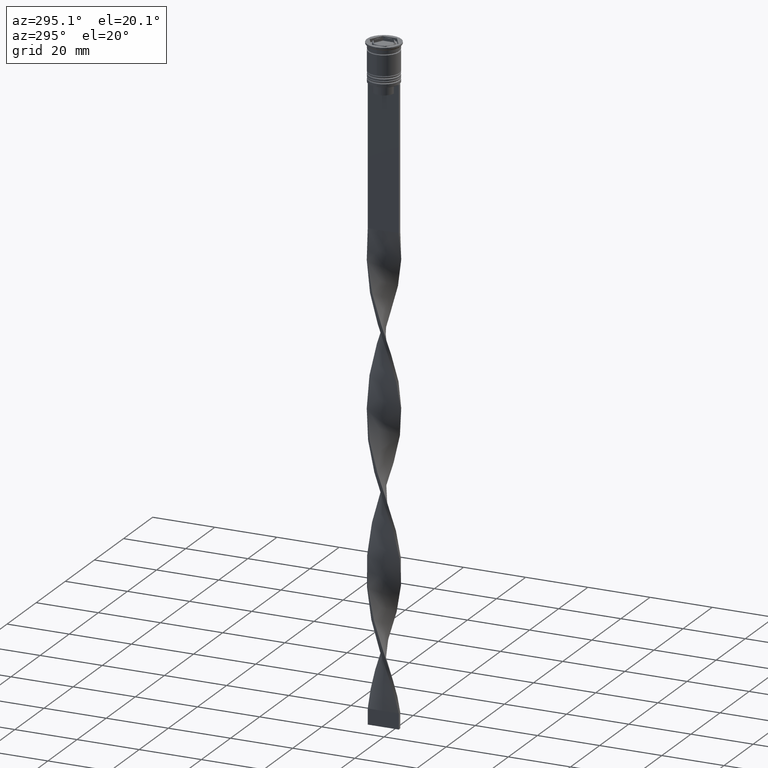
[diagram: clean part render]
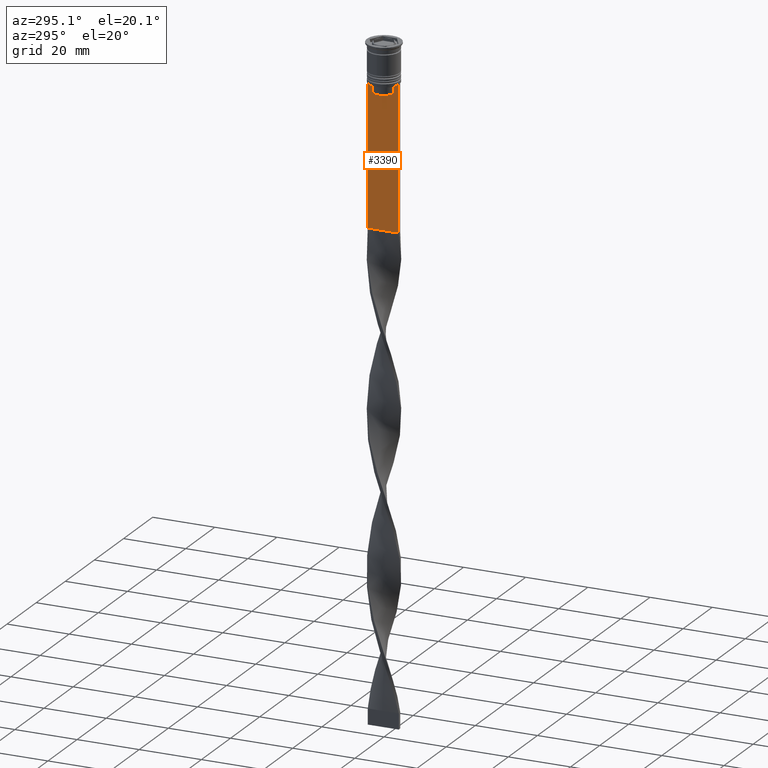
[diagram: same view with one face highlighted and labeled with its STEP entity id]
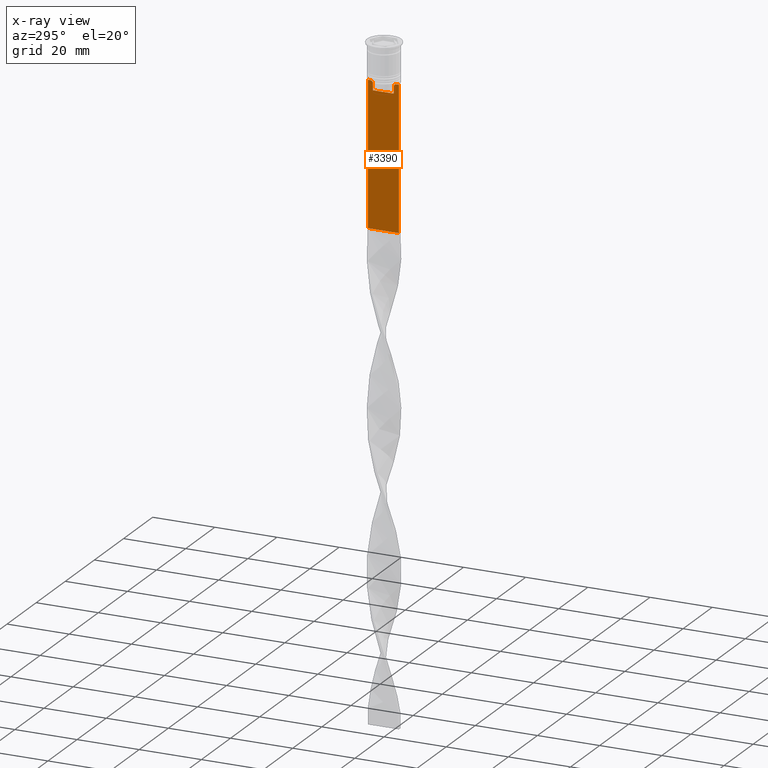
[diagram: x-ray of the same camera — body ghosted, the highlighted face saturated]
A machine part, auxiliary view. The second image highlights one B-rep face of the part: STEP entity #3390.
The next image is the same camera in x-ray: the body ghosted, the highlighted face saturated — about 0% of this face is hidden behind the body in this view.
In plain terms, the highlighted planar face has unit normal (-1, 0, 0).
Its self-contained STEP definition (entity closure, byte-faithful):
#94 = B_SPLINE_CURVE_WITH_KNOTS ( 'NONE', 3,
 ( #220, #3024, #2362, #3591 ),
 .UNSPECIFIED., .F., .F.,
 ( 4, 4 ),
 ( 0.006644825462451552783, 0.007355321358912435097 ),
 .UNSPECIFIED. ) ;
#169 = ORIENTED_EDGE ( 'NONE', *, *, #2164, .T. ) ;
#180 = CARTESIAN_POINT ( 'NONE',  ( -0.5000000000000000000, -3.363034344160045652, -15.50000000000000000 ) ) ;
#185 = VECTOR ( 'NONE', #3327, 1000.000000000000000 ) ;
#192 = AXIS2_PLACEMENT_3D ( 'NONE', #450, #1364, #3159 ) ;
#204 = VERTEX_POINT ( 'NONE', #722 ) ;
#220 = CARTESIAN_POINT ( 'NONE',  ( -0.5000000000000000000, 3.867815921162742754, -12.50000000000000000 ) ) ;
#251 = CARTESIAN_POINT ( 'NONE',  ( -0.5000000000000000000, -3.867815921162742754, -12.50000000000000000 ) ) ;
#289 = CARTESIAN_POINT ( 'NONE',  ( -0.5000000000000000000, 4.874423042781575788, -12.50000000000000000 ) ) ;
#377 = VECTOR ( 'NONE', #2246, 1000.000000000000000 ) ;
#413 = CARTESIAN_POINT ( 'NONE',  ( -0.5000000000000000000, -4.999999999999999112, -12.50000000000000000 ) ) ;
#443 = DIRECTION ( 'NONE',  ( 0.000000000000000000, -1.000000000000000000, 0.000000000000000000 ) ) ;
#450 = CARTESIAN_POINT ( 'NONE',  ( -0.5000000000000000000, -4.999999999999999112, -2.450124378879110054 ) ) ;
#509 = VECTOR ( 'NONE', #1249, 1000.000000000000000 ) ;
#594 = VERTEX_POINT ( 'NONE', #3644 ) ;
#674 = CARTESIAN_POINT ( 'NONE',  ( -0.5000000000000000000, -4.999999999999999112, -12.50000000000000000 ) ) ;
#717 = VERTEX_POINT ( 'NONE', #413 ) ;
#722 = CARTESIAN_POINT ( 'NONE',  ( -0.5000000000000000000, 5.000000000000000888, -12.50000000000000000 ) ) ;
#751 = ORIENTED_EDGE ( 'NONE', *, *, #2069, .F. ) ;
#840 = EDGE_CURVE ( 'NONE', #3834, #2535, #2388, .T. ) ;
#864 = CARTESIAN_POINT ( 'NONE',  ( -0.5000000000000000000, -4.999999999999999112, -12.50000000000000000 ) ) ;
#937 = CARTESIAN_POINT ( 'NONE',  ( -0.5000000000000000000, -3.363034344160045208, 0.000000000000000000 ) ) ;
#966 = ORIENTED_EDGE ( 'NONE', *, *, #1471, .F. ) ;
#1019 = B_SPLINE_CURVE_WITH_KNOTS ( 'NONE', 3,
 ( #3089, #1820, #1507, #251 ),
 .UNSPECIFIED., .F., .F.,
 ( 4, 4 ),
 ( 0.01632394437298965648, 0.01703543518243618576 ),
 .UNSPECIFIED. ) ;
#1042 = CARTESIAN_POINT ( 'NONE',  ( -0.5000000000000000000, -4.999999999999999112, -58.50000000000000000 ) ) ;
#1068 = VERTEX_POINT ( 'NONE', #1190 ) ;
#1093 = CARTESIAN_POINT ( 'NONE',  ( -0.5000000000000000000, 3.363034344160045652, -15.50000000000000000 ) ) ;
#1096 = CARTESIAN_POINT ( 'NONE',  ( -0.5000000000000000000, 3.363034344160045208, -13.00000000000000178 ) ) ;
#1110 = EDGE_CURVE ( 'NONE', #717, #1870, #3655, .T. ) ;
#1158 = EDGE_CURVE ( 'NONE', #1870, #3453, #2835, .T. ) ;
#1159 = EDGE_CURVE ( 'NONE', #3226, #717, #3155, .T. ) ;
#1190 = CARTESIAN_POINT ( 'NONE',  ( -0.5000000000000000000, -3.867815921162742754, -12.50000000000000000 ) ) ;
#1249 = DIRECTION ( 'NONE',  ( 0.000000000000000000, 0.000000000000000000, -1.000000000000000000 ) ) ;
#1289 = VECTOR ( 'NONE', #1892, 1000.000000000000000 ) ;
#1364 = DIRECTION ( 'NONE',  ( -1.000000000000000000, 0.000000000000000000, 0.000000000000000000 ) ) ;
#1366 = ORIENTED_EDGE ( 'NONE', *, *, #1158, .F. ) ;
#1471 = EDGE_CURVE ( 'NONE', #3656, #1629, #1826, .T. ) ;
#1507 = CARTESIAN_POINT ( 'NONE',  ( -0.5000000000000000000, -3.699658232838647365, -12.66676999593996555 ) ) ;
#1612 = VECTOR ( 'NONE', #2105, 1000.000000000000000 ) ;
#1625 = CARTESIAN_POINT ( 'NONE',  ( -0.5000000000000000000, -4.999999999999999112, -12.50000000000000000 ) ) ;
#1629 = VERTEX_POINT ( 'NONE', #2993 ) ;
#1683 = VECTOR ( 'NONE', #443, 1000.000000000000000 ) ;
#1793 = CARTESIAN_POINT ( 'NONE',  ( -0.5000000000000000000, -4.999999999999999112, -2.450124378879110054 ) ) ;
#1815 = VECTOR ( 'NONE', #3104, 1000.000000000000000 ) ;
#1820 = CARTESIAN_POINT ( 'NONE',  ( -0.5000000000000000000, -3.531412985305424801, -12.83345201382502765 ) ) ;
#1826 = LINE ( 'NONE', #937, #1289 ) ;
#1833 = EDGE_CURVE ( 'NONE', #204, #3245, #3433, .T. ) ;
#1870 = VERTEX_POINT ( 'NONE', #1042 ) ;
#1892 = DIRECTION ( 'NONE',  ( -0.000000000000000000, -0.000000000000000000, 1.000000000000000000 ) ) ;
#1933 = CARTESIAN_POINT ( 'NONE',  ( -0.5000000000000000000, -4.999999999999999112, -58.50000000000000000 ) ) ;
#1947 = VECTOR ( 'NONE', #3678, 1000.000000000000000 ) ;
#2016 = FACE_OUTER_BOUND ( 'NONE', #2051, .T. ) ;
#2018 = ORIENTED_EDGE ( 'NONE', *, *, #3266, .F. ) ;
#2040 = ORIENTED_EDGE ( 'NONE', *, *, #1110, .F. ) ;
#2051 = EDGE_LOOP ( 'NONE', ( #751, #3213, #2521, #169, #1366, #2040, #2778, #2623, #2018, #966, #2555, #2892 ) ) ;
#2069 = EDGE_CURVE ( 'NONE', #594, #3834, #94, .T. ) ;
#2105 = DIRECTION ( 'NONE',  ( 0.000000000000000000, -1.000000000000000000, 0.000000000000000000 ) ) ;
#2138 = EDGE_CURVE ( 'NONE', #1068, #3226, #2403, .T. ) ;
#2164 = EDGE_CURVE ( 'NONE', #204, #3453, #3633, .T. ) ;
#2205 = CARTESIAN_POINT ( 'NONE',  ( -0.5000000000000000000, 3.399999999999998135, -15.50000000000000000 ) ) ;
#2246 = DIRECTION ( 'NONE',  ( 0.000000000000000000, 1.000000000000000000, 0.000000000000000000 ) ) ;
#2330 = PLANE ( 'NONE',  #192 ) ;
#2357 = EDGE_CURVE ( 'NONE', #2535, #3656, #2446, .T. ) ;
#2362 = CARTESIAN_POINT ( 'NONE',  ( -0.5000000000000000000, 3.531412678228260216, -12.83345231756357840 ) ) ;
#2388 = LINE ( 'NONE', #3618, #3598 ) ;
#2403 = LINE ( 'NONE', #864, #1612 ) ;
#2446 = LINE ( 'NONE', #2205, #1947 ) ;
#2488 = EDGE_CURVE ( 'NONE', #3245, #594, #2548, .T. ) ;
#2521 = ORIENTED_EDGE ( 'NONE', *, *, #1833, .F. ) ;
#2535 = VERTEX_POINT ( 'NONE', #1093 ) ;
#2548 = LINE ( 'NONE', #2895, #1683 ) ;
#2551 = DIRECTION ( 'NONE',  ( 0.000000000000000000, -1.000000000000000000, 0.000000000000000000 ) ) ;
#2555 = ORIENTED_EDGE ( 'NONE', *, *, #2357, .F. ) ;
#2623 = ORIENTED_EDGE ( 'NONE', *, *, #2138, .F. ) ;
#2668 = DIRECTION ( 'NONE',  ( 0.000000000000000000, 0.000000000000000000, -1.000000000000000000 ) ) ;
#2778 = ORIENTED_EDGE ( 'NONE', *, *, #1159, .F. ) ;
#2835 = LINE ( 'NONE', #1933, #377 ) ;
#2892 = ORIENTED_EDGE ( 'NONE', *, *, #840, .F. ) ;
#2895 = CARTESIAN_POINT ( 'NONE',  ( -0.5000000000000000000, -4.999999999999999112, -12.50000000000000000 ) ) ;
#2928 = CARTESIAN_POINT ( 'NONE',  ( -0.5000000000000000000, 5.000000000000000888, -58.50000000000000000 ) ) ;
#2993 = CARTESIAN_POINT ( 'NONE',  ( -0.5000000000000000000, -3.363034344160045208, -13.00000000000000178 ) ) ;
#3024 = CARTESIAN_POINT ( 'NONE',  ( -0.5000000000000000000, 3.699657965831574913, -12.66677026074361301 ) ) ;
#3089 = CARTESIAN_POINT ( 'NONE',  ( -0.5000000000000000000, -3.363034344160045208, -13.00000000000000178 ) ) ;
#3104 = DIRECTION ( 'NONE',  ( 0.000000000000000000, -1.000000000000000000, 0.000000000000000000 ) ) ;
#3155 = LINE ( 'NONE', #1625, #3795 ) ;
#3159 = DIRECTION ( 'NONE',  ( 0.000000000000000000, 0.000000000000000000, 1.000000000000000000 ) ) ;
#3213 = ORIENTED_EDGE ( 'NONE', *, *, #2488, .F. ) ;
#3226 = VERTEX_POINT ( 'NONE', #3687 ) ;
#3245 = VERTEX_POINT ( 'NONE', #289 ) ;
#3266 = EDGE_CURVE ( 'NONE', #1629, #1068, #1019, .T. ) ;
#3327 = DIRECTION ( 'NONE',  ( 0.000000000000000000, 0.000000000000000000, -1.000000000000000000 ) ) ;
#3350 = CARTESIAN_POINT ( 'NONE',  ( -0.5000000000000000000, 5.000000000000000888, -2.450124378879110054 ) ) ;
#3390 = ADVANCED_FACE ( 'NONE', ( #2016 ), #2330, .T. ) ;
#3433 = LINE ( 'NONE', #674, #1815 ) ;
#3453 = VERTEX_POINT ( 'NONE', #2928 ) ;
#3591 = CARTESIAN_POINT ( 'NONE',  ( -0.5000000000000000000, 3.363034344160045208, -13.00000000000000178 ) ) ;
#3598 = VECTOR ( 'NONE', #2668, 1000.000000000000000 ) ;
#3618 = CARTESIAN_POINT ( 'NONE',  ( -0.5000000000000000000, 3.363034344160045208, 0.000000000000000000 ) ) ;
#3633 = LINE ( 'NONE', #3350, #185 ) ;
#3644 = CARTESIAN_POINT ( 'NONE',  ( -0.5000000000000000000, 3.867815921162742754, -12.50000000000000000 ) ) ;
#3655 = LINE ( 'NONE', #1793, #509 ) ;
#3656 = VERTEX_POINT ( 'NONE', #180 ) ;
#3678 = DIRECTION ( 'NONE',  ( 0.000000000000000000, -1.000000000000000000, 0.000000000000000000 ) ) ;
#3687 = CARTESIAN_POINT ( 'NONE',  ( -0.5000000000000000000, -4.874423042781575788, -12.50000000000000000 ) ) ;
#3795 = VECTOR ( 'NONE', #2551, 1000.000000000000000 ) ;
#3834 = VERTEX_POINT ( 'NONE', #1096 ) ;